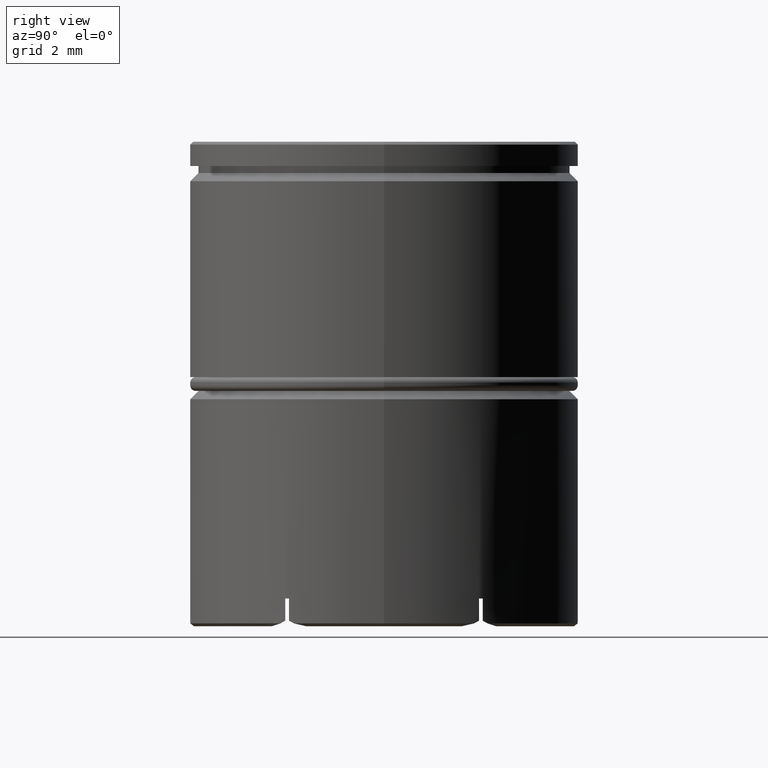
[diagram: clean part render]
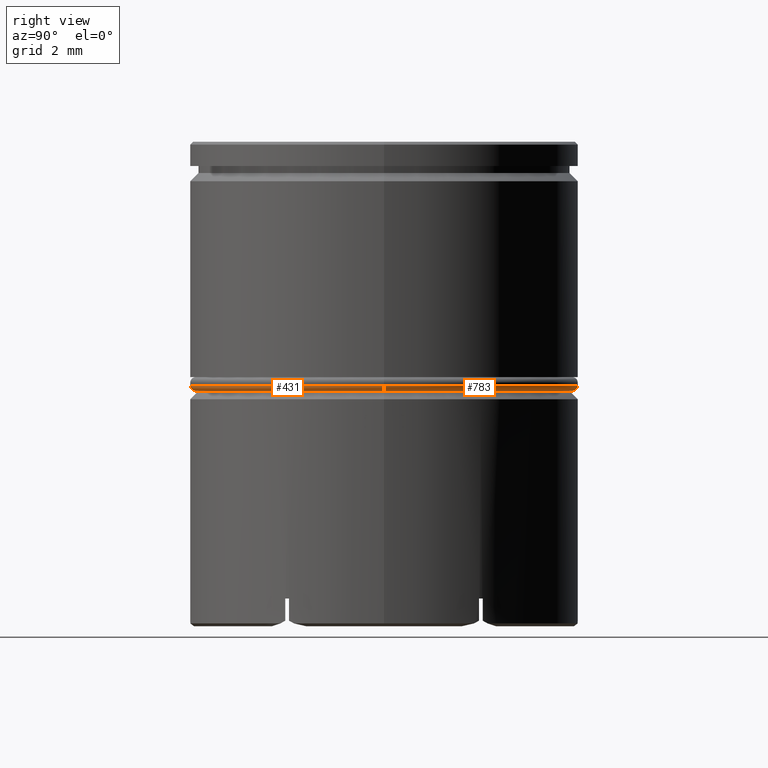
[diagram: same view with one multi-face feature highlighted, each face labeled with its STEP entity id]
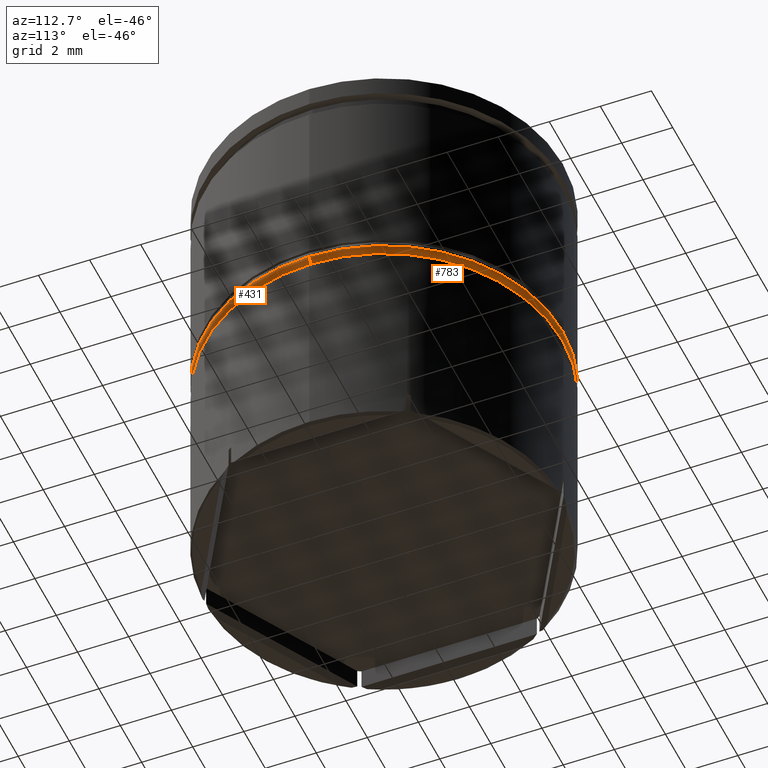
[diagram: same view with one multi-face feature highlighted, each face labeled with its STEP entity id]
A machine part, right view. The highlighted faces form ONE feature: a constant-radius fillet chain: 2 tangent blend faces with common blend radius 0.2 mm. The faces share edges in the B-rep.
A second angle (auxiliary view) of the same feature is appended — it is thin or edge-on in the first view.
Their STEP definitions:
[1] entity #431 (Torus):
#38 = CARTESIAN_POINT ( 'NONE',  ( -7.000000000000000888, 8.572527594031474176E-16, -8.799999999999998934 ) ) ;
#46 = AXIS2_PLACEMENT_3D ( 'NONE', #1185, #1423, #1214 ) ;
#55 = VERTEX_POINT ( 'NONE', #38 ) ;
#61 = EDGE_CURVE ( 'NONE', #835, #1095, #1569, .T. ) ;
#76 = CARTESIAN_POINT ( 'NONE',  ( 6.800000000000001599, 0.000000000000000000, -9.000000000000001776 ) ) ;
#101 = ORIENTED_EDGE ( 'NONE', *, *, #1369, .T. ) ;
#178 = CARTESIAN_POINT ( 'NONE',  ( -6.800000000000001599, 8.450062914116737647E-16, -9.000000000000001776 ) ) ;
#291 = ORIENTED_EDGE ( 'NONE', *, *, #1090, .F. ) ;
#294 = ORIENTED_EDGE ( 'NONE', *, *, #61, .F. ) ;
#299 = CARTESIAN_POINT ( 'NONE',  ( -6.800000000000001599, 8.327598234202003091E-16, -8.799999999999998934 ) ) ;
#322 = AXIS2_PLACEMENT_3D ( 'NONE', #1193, #1323, #851 ) ;
#334 = AXIS2_PLACEMENT_3D ( 'NONE', #1591, #968, #986 ) ;
#396 = TOROIDAL_SURFACE ( 'NONE', #46, 6.800000000000001599, 0.2000000000000000111 ) ;
#402 = DIRECTION ( 'NONE',  ( -0.000000000000000000, -0.000000000000000000, -1.000000000000000000 ) ) ;
#431 = ADVANCED_FACE ( 'NONE', ( #1588 ), #396, .T. ) ;
#619 = CIRCLE ( 'NONE', #334, 7.000000000000000888 ) ;
#657 = DIRECTION ( 'NONE',  ( -1.000000000000000000, 1.224646799147353454E-16, 0.000000000000000000 ) ) ;
#688 = DIRECTION ( 'NONE',  ( 1.224646799147353207E-16, 1.000000000000000000, -0.000000000000000000 ) ) ;
#775 = CIRCLE ( 'NONE', #987, 0.1999999999999996503 ) ;
#786 = AXIS2_PLACEMENT_3D ( 'NONE', #1297, #402, #1538 ) ;
#835 = VERTEX_POINT ( 'NONE', #76 ) ;
#851 = DIRECTION ( 'NONE',  ( 0.000000000000000000, 0.000000000000000000, -1.000000000000000000 ) ) ;
#862 = EDGE_CURVE ( 'NONE', #55, #1385, #619, .T. ) ;
#954 = CIRCLE ( 'NONE', #322, 0.2000000000000005107 ) ;
#968 = DIRECTION ( 'NONE',  ( 0.000000000000000000, 0.000000000000000000, 1.000000000000000000 ) ) ;
#986 = DIRECTION ( 'NONE',  ( 1.000000000000000000, 0.000000000000000000, 0.000000000000000000 ) ) ;
#987 = AXIS2_PLACEMENT_3D ( 'NONE', #299, #688, #657 ) ;
#1090 = EDGE_CURVE ( 'NONE', #1095, #55, #775, .T. ) ;
#1095 = VERTEX_POINT ( 'NONE', #178 ) ;
#1185 = CARTESIAN_POINT ( 'NONE',  ( 0.000000000000000000, 0.000000000000000000, -8.799999999999998934 ) ) ;
#1193 = CARTESIAN_POINT ( 'NONE',  ( 6.800000000000001599, 0.000000000000000000, -8.799999999999998934 ) ) ;
#1214 = DIRECTION ( 'NONE',  ( 1.000000000000000000, 0.000000000000000000, 0.000000000000000000 ) ) ;
#1245 = CARTESIAN_POINT ( 'NONE',  ( 7.000000000000000888, 0.000000000000000000, -8.799999999999998934 ) ) ;
#1297 = CARTESIAN_POINT ( 'NONE',  ( 0.000000000000000000, 0.000000000000000000, -9.000000000000001776 ) ) ;
#1323 = DIRECTION ( 'NONE',  ( 0.000000000000000000, -1.000000000000000000, 0.000000000000000000 ) ) ;
#1369 = EDGE_CURVE ( 'NONE', #835, #1385, #954, .T. ) ;
#1385 = VERTEX_POINT ( 'NONE', #1245 ) ;
#1423 = DIRECTION ( 'NONE',  ( 0.000000000000000000, 0.000000000000000000, 1.000000000000000000 ) ) ;
#1433 = EDGE_LOOP ( 'NONE', ( #291, #294, #101, #1613 ) ) ;
#1538 = DIRECTION ( 'NONE',  ( 1.000000000000000000, 0.000000000000000000, 0.000000000000000000 ) ) ;
#1569 = CIRCLE ( 'NONE', #786, 6.800000000000001599 ) ;
#1588 = FACE_OUTER_BOUND ( 'NONE', #1433, .T. ) ;
#1591 = CARTESIAN_POINT ( 'NONE',  ( 0.000000000000000000, 0.000000000000000000, -8.799999999999998934 ) ) ;
#1613 = ORIENTED_EDGE ( 'NONE', *, *, #862, .F. ) ;
[2] entity #783 (Torus):
#38 = CARTESIAN_POINT ( 'NONE',  ( -7.000000000000000888, 8.572527594031474176E-16, -8.799999999999998934 ) ) ;
#54 = AXIS2_PLACEMENT_3D ( 'NONE', #1584, #1609, #464 ) ;
#55 = VERTEX_POINT ( 'NONE', #38 ) ;
#76 = CARTESIAN_POINT ( 'NONE',  ( 6.800000000000001599, 0.000000000000000000, -9.000000000000001776 ) ) ;
#172 = EDGE_LOOP ( 'NONE', ( #938, #778, #1310, #181 ) ) ;
#178 = CARTESIAN_POINT ( 'NONE',  ( -6.800000000000001599, 8.450062914116737647E-16, -9.000000000000001776 ) ) ;
#181 = ORIENTED_EDGE ( 'NONE', *, *, #1369, .F. ) ;
#224 = DIRECTION ( 'NONE',  ( 1.000000000000000000, 0.000000000000000000, 0.000000000000000000 ) ) ;
#241 = CIRCLE ( 'NONE', #1501, 6.800000000000001599 ) ;
#299 = CARTESIAN_POINT ( 'NONE',  ( -6.800000000000001599, 8.327598234202003091E-16, -8.799999999999998934 ) ) ;
#322 = AXIS2_PLACEMENT_3D ( 'NONE', #1193, #1323, #851 ) ;
#409 = EDGE_CURVE ( 'NONE', #1385, #55, #1607, .T. ) ;
#423 = CARTESIAN_POINT ( 'NONE',  ( 0.000000000000000000, 0.000000000000000000, -8.799999999999998934 ) ) ;
#464 = DIRECTION ( 'NONE',  ( 1.000000000000000000, 0.000000000000000000, 0.000000000000000000 ) ) ;
#576 = DIRECTION ( 'NONE',  ( 1.000000000000000000, 0.000000000000000000, 0.000000000000000000 ) ) ;
#595 = DIRECTION ( 'NONE',  ( 0.000000000000000000, 0.000000000000000000, 1.000000000000000000 ) ) ;
#657 = DIRECTION ( 'NONE',  ( -1.000000000000000000, 1.224646799147353454E-16, 0.000000000000000000 ) ) ;
#688 = DIRECTION ( 'NONE',  ( 1.224646799147353207E-16, 1.000000000000000000, -0.000000000000000000 ) ) ;
#744 = CARTESIAN_POINT ( 'NONE',  ( 0.000000000000000000, 0.000000000000000000, -9.000000000000001776 ) ) ;
#775 = CIRCLE ( 'NONE', #987, 0.1999999999999996503 ) ;
#778 = ORIENTED_EDGE ( 'NONE', *, *, #1090, .T. ) ;
#783 = ADVANCED_FACE ( 'NONE', ( #1347 ), #958, .T. ) ;
#835 = VERTEX_POINT ( 'NONE', #76 ) ;
#851 = DIRECTION ( 'NONE',  ( 0.000000000000000000, 0.000000000000000000, -1.000000000000000000 ) ) ;
#938 = ORIENTED_EDGE ( 'NONE', *, *, #1401, .F. ) ;
#954 = CIRCLE ( 'NONE', #322, 0.2000000000000005107 ) ;
#958 = TOROIDAL_SURFACE ( 'NONE', #54, 6.800000000000001599, 0.2000000000000000111 ) ;
#987 = AXIS2_PLACEMENT_3D ( 'NONE', #299, #688, #657 ) ;
#1090 = EDGE_CURVE ( 'NONE', #1095, #55, #775, .T. ) ;
#1095 = VERTEX_POINT ( 'NONE', #178 ) ;
#1114 = AXIS2_PLACEMENT_3D ( 'NONE', #423, #595, #576 ) ;
#1193 = CARTESIAN_POINT ( 'NONE',  ( 6.800000000000001599, 0.000000000000000000, -8.799999999999998934 ) ) ;
#1245 = CARTESIAN_POINT ( 'NONE',  ( 7.000000000000000888, 0.000000000000000000, -8.799999999999998934 ) ) ;
#1310 = ORIENTED_EDGE ( 'NONE', *, *, #409, .F. ) ;
#1323 = DIRECTION ( 'NONE',  ( 0.000000000000000000, -1.000000000000000000, 0.000000000000000000 ) ) ;
#1347 = FACE_OUTER_BOUND ( 'NONE', #172, .T. ) ;
#1369 = EDGE_CURVE ( 'NONE', #835, #1385, #954, .T. ) ;
#1385 = VERTEX_POINT ( 'NONE', #1245 ) ;
#1401 = EDGE_CURVE ( 'NONE', #1095, #835, #241, .T. ) ;
#1495 = DIRECTION ( 'NONE',  ( -0.000000000000000000, -0.000000000000000000, -1.000000000000000000 ) ) ;
#1501 = AXIS2_PLACEMENT_3D ( 'NONE', #744, #1495, #224 ) ;
#1584 = CARTESIAN_POINT ( 'NONE',  ( 0.000000000000000000, 0.000000000000000000, -8.799999999999998934 ) ) ;
#1607 = CIRCLE ( 'NONE', #1114, 7.000000000000000888 ) ;
#1609 = DIRECTION ( 'NONE',  ( 0.000000000000000000, 0.000000000000000000, 1.000000000000000000 ) ) ;